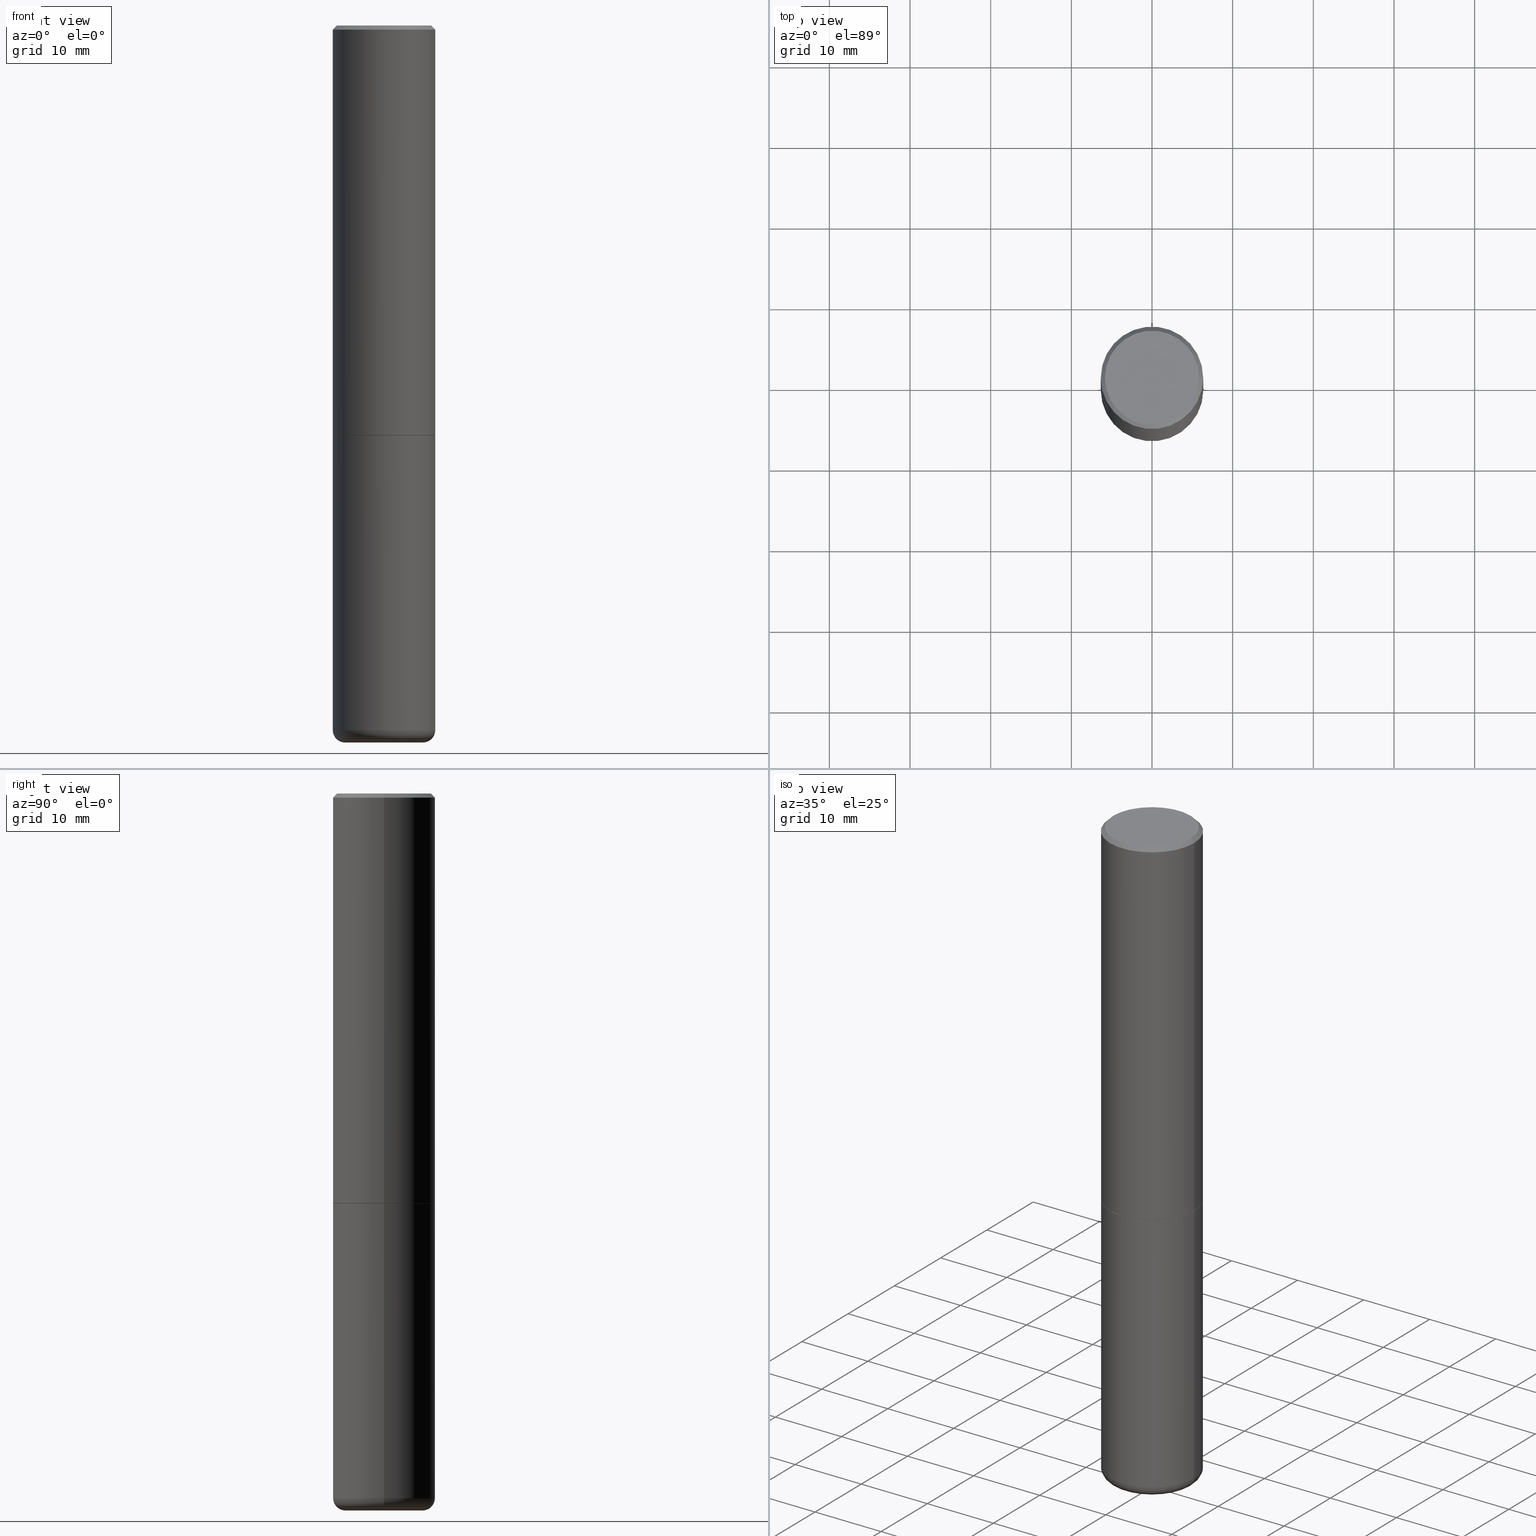
[diagram: canonical four-view strip — front | top / right | iso, engineering-drawing reading convention]
A machine part, canonical four-view strip (front | top / right | iso — engineering-drawing reading convention). The complete STEP part file that produces these views, byte-faithful:
ISO-10303-21;
HEADER;
FILE_DESCRIPTION (( 'STEP AP203' ),
    '1' );
FILE_NAME ('77193.STEP',
    '2024-03-06T16:22:13',
    ( '' ),
    ( '' ),
    'SwSTEP 2.0',
    'SolidWorks 2023',
    '' );
FILE_SCHEMA (( 'CONFIG_CONTROL_DESIGN' ));
ENDSEC;

DATA;
#1 = CC_DESIGN_PERSON_AND_ORGANIZATION_ASSIGNMENT ( #60, #400, ( #214 ) ) ;
#2 = DIRECTION ( 'NONE',  ( -2.445468806185136597E-29, 3.491481338843145583E-15, 1.000000000000000000 ) ) ;
#3 = CIRCLE ( 'NONE', #74, 0.1899999999999999745 ) ;
#4 = CARTESIAN_POINT ( 'NONE',  ( 0.2499999999999999167, -1.784954126219745400E-15, -0.02000000000000005593 ) ) ;
#5 = CARTESIAN_POINT ( 'NONE',  ( 0.000000000000000000, 0.000000000000000000, 0.000000000000000000 ) ) ;
#6 = CC_DESIGN_DATE_AND_TIME_ASSIGNMENT ( #341, #108, ( #319 ) ) ;
#7 = FACE_OUTER_BOUND ( 'NONE', #370, .T. ) ;
#8 = DIRECTION ( 'NONE',  ( 0.7071067811865465735, -7.319954787623252890E-15, -0.7071067811865484609 ) ) ;
#9 = ADVANCED_FACE ( 'NONE', ( #195 ), #241, .F. ) ;
#10 = LOCAL_TIME ( 11, 22, 13.00000000000000000, #403 ) ;
#11 = ORIENTED_EDGE ( 'NONE', *, *, #43, .F. ) ;
#12 = ORIENTED_EDGE ( 'NONE', *, *, #289, .F. ) ;
#13 = PERSON_AND_ORGANIZATION ( #315, #198 ) ;
#14 = ORIENTED_EDGE ( 'NONE', *, *, #46, .F. ) ;
#15 = AXIS2_PLACEMENT_3D ( 'NONE', #221, #55, #25 ) ;
#16 = ORIENTED_EDGE ( 'NONE', *, *, #331, .T. ) ;
#17 = DIRECTION ( 'NONE',  ( -2.445468806185136877E-29, 3.491481338843145188E-15, 1.000000000000000000 ) ) ;
#18 = PRODUCT_DEFINITION_SHAPE ( 'NONE', 'NONE',  #100 ) ;
#19 = EDGE_CURVE ( 'NONE', #334, #270, #373, .T. ) ;
#20 = CALENDAR_DATE ( 2024, 6, 3 ) ;
#21 = CARTESIAN_POINT ( 'NONE',  ( 0.2489999999999999991, -8.721720384430171040E-15, -2.000000000000000000 ) ) ;
#22 = EDGE_LOOP ( 'NONE', ( #365, #366, #47, #172 ) ) ;
#23 = AXIS2_PLACEMENT_3D ( 'NONE', #70, #133, #230 ) ;
#24 = APPLICATION_PROTOCOL_DEFINITION ( 'international standard', 'config_control_design', 1994, #134 ) ;
#25 = DIRECTION ( 'NONE',  ( 1.000000000000000000, -6.982962677686266711E-15, 0.000000000000000000 ) ) ;
#26 = ADVANCED_FACE ( 'NONE', ( #412 ), #123, .T. ) ;
#27 = DIRECTION ( 'NONE',  ( -1.000000000000000000, 6.982962677686265922E-15, -4.876176775795935793E-29 ) ) ;
#28 = PERSON_AND_ORGANIZATION_ROLE ( 'creator' ) ;
#29 = CARTESIAN_POINT ( 'NONE',  ( 4.890937612370287172E-31, -6.982962677686310098E-17, -0.02000000000000005593 ) ) ;
#30 = AXIS2_PLACEMENT_3D ( 'NONE', #382, #59, #217 ) ;
#31 = DIRECTION ( 'NONE',  ( -2.445468806185136877E-29, 3.491481338843145188E-15, 1.000000000000000000 ) ) ;
#32 = DIRECTION ( 'NONE',  ( -2.445468806185136877E-29, 3.491481338843145188E-15, 1.000000000000000000 ) ) ;
#33 = DIRECTION ( 'NONE',  ( 1.000000000000000000, -6.982962677686265133E-15, 4.883557194083112340E-29 ) ) ;
#34 = DIRECTION ( 'NONE',  ( -1.000000000000000000, 6.982962677686265922E-15, -4.876176775795935793E-29 ) ) ;
#35 = VECTOR ( 'NONE', #330, 39.37007874015748143 ) ;
#36 = LINE ( 'NONE', #164, #56 ) ;
#37 = CONICAL_SURFACE ( 'NONE', #258, 0.2499999999999999167, 0.7853981633974469467 ) ;
#38 = DIRECTION ( 'NONE',  ( -2.445468806185136597E-29, 3.491481338843145583E-15, 1.000000000000000000 ) ) ;
#39 = ORIENTED_EDGE ( 'NONE', *, *, #310, .F. ) ;
#40 = LOCAL_TIME ( 11, 22, 13.00000000000000000, #339 ) ;
#41 = DIRECTION ( 'NONE',  ( -1.000000000000000000, 6.982962677686267499E-15, 0.000000000000000000 ) ) ;
#42 = AXIS2_PLACEMENT_3D ( 'NONE', #165, #291, #102 ) ;
#43 = EDGE_CURVE ( 'NONE', #267, #109, #161, .T. ) ;
#44 = ORIENTED_EDGE ( 'NONE', *, *, #142, .T. ) ;
#45 = EDGE_LOOP ( 'NONE', ( #213, #182, #308, #144 ) ) ;
#46 = EDGE_CURVE ( 'NONE', #240, #334, #328, .T. ) ;
#47 = ORIENTED_EDGE ( 'NONE', *, *, #327, .T. ) ;
#48 = CIRCLE ( 'NONE', #251, 0.2299999999999999267 ) ;
#49 = CALENDAR_DATE ( 2024, 6, 3 ) ;
#51 = EDGE_CURVE ( 'NONE', #109, #282, #321, .T. ) ;
#50 = DIRECTION ( 'NONE',  ( -2.445468806185136597E-29, 3.491481338843145583E-15, 1.000000000000000000 ) ) ;
#52 = PERSON_AND_ORGANIZATION ( #315, #198 ) ;
#53 = ORIENTED_EDGE ( 'NONE', *, *, #179, .F. ) ;
#54 = DESIGN_CONTEXT ( 'detailed design', #118, 'design' ) ;
#55 = DIRECTION ( 'NONE',  ( -2.445468806185136597E-29, 3.491481338843145583E-15, 1.000000000000000000 ) ) ;
#56 = VECTOR ( 'NONE', #166, 39.37007874015748143 ) ;
#57 = CARTESIAN_POINT ( 'NONE',  ( 0.000000000000000000, 0.000000000000000000, 0.000000000000000000 ) ) ;
#58 = DIRECTION ( 'NONE',  ( 1.000000000000000000, 0.000000000000000000, 0.000000000000000000 ) ) ;
#59 = DIRECTION ( 'NONE',  ( -2.445468806185136597E-29, 3.491481338843145583E-15, 1.000000000000000000 ) ) ;
#60 = PERSON_AND_ORGANIZATION ( #315, #198 ) ;
#61 = CARTESIAN_POINT ( 'NONE',  ( 4.890937612370287172E-31, -6.982962677686310098E-17, -0.02000000000000005593 ) ) ;
#62 = EDGE_CURVE ( 'NONE', #265, #186, #48, .T. ) ;
#63 = APPROVAL_PERSON_ORGANIZATION ( #183, #295, #367 ) ;
#64 = LINE ( 'NONE', #199, #254 ) ;
#65 = CIRCLE ( 'NONE', #95, 0.2500000000000002776 ) ;
#66 = DIRECTION ( 'NONE',  ( -2.445468806185136597E-29, 3.491481338843145583E-15, 1.000000000000000000 ) ) ;
#67 = CYLINDRICAL_SURFACE ( 'NONE', #311, 0.2500000000000000000 ) ;
#68 = CARTESIAN_POINT ( 'NONE',  ( -0.2500000000000000000, -7.720472402253106025E-15, -2.000000000000000000 ) ) ;
#69 = DIRECTION ( 'NONE',  ( -2.445468806185136597E-29, 3.491481338843145583E-15, 1.000000000000000000 ) ) ;
#70 = CARTESIAN_POINT ( 'NONE',  ( 4.890937612370273194E-29, -6.982962677686291165E-15, -2.000000000000000000 ) ) ;
#71 = DIRECTION ( 'NONE',  ( 2.438088387897960049E-29, -3.491481338843145188E-15, -1.000000000000000000 ) ) ;
#72 = FACE_OUTER_BOUND ( 'NONE', #210, .T. ) ;
#73 = AXIS2_PLACEMENT_3D ( 'NONE', #316, #187, #58 ) ;
#74 = AXIS2_PLACEMENT_3D ( 'NONE', #98, #66, #129 ) ;
#75 = DIRECTION ( 'NONE',  ( 1.000000000000000000, -6.982962677686266711E-15, 0.000000000000000000 ) ) ;
#76 = LINE ( 'NONE', #364, #35 ) ;
#77 = EDGE_LOOP ( 'NONE', ( #53, #405 ) ) ;
#78 = ORIENTED_EDGE ( 'NONE', *, *, #131, .T. ) ;
#79 = AXIS2_PLACEMENT_3D ( 'NONE', #226, #228, #201 ) ;
#80 = EDGE_LOOP ( 'NONE', ( #301, #84, #177, #348 ) ) ;
#81 = EDGE_LOOP ( 'NONE', ( #305, #14 ) ) ;
#82 = ADVANCED_FACE ( 'NONE', ( #125 ), #286, .F. ) ;
#83 = ADVANCED_FACE ( 'NONE', ( #276 ), #350, .T. ) ;
#84 = ORIENTED_EDGE ( 'NONE', *, *, #185, .T. ) ;
#85 = CIRCLE ( 'NONE', #169, 0.05999999999999994227 ) ;
#86 = ORIENTED_EDGE ( 'NONE', *, *, #407, .F. ) ;
#87 = DIRECTION ( 'NONE',  ( -1.000000000000000000, 7.105427357600997914E-15, 0.000000000000000000 ) ) ;
#88 = ADVANCED_FACE ( 'NONE', ( #314 ), #369, .T. ) ;
#89 = DIRECTION ( 'NONE',  ( 0.7071067811866199593, -2.468850131083015945E-15, 0.7071067811864750752 ) ) ;
#90 = DIRECTION ( 'NONE',  ( -2.445468806185136597E-29, 3.491481338843145583E-15, 1.000000000000000000 ) ) ;
#91 = CARTESIAN_POINT ( 'NONE',  ( -0.2499999999999999167, 1.675911042644703182E-15, -0.02000000000000005593 ) ) ;
#92 = CARTESIAN_POINT ( 'NONE',  ( 0.2499999999999999722, -1.375643647504198770E-14, -3.439999999999999947 ) ) ;
#93 = DIRECTION ( 'NONE',  ( -2.445468806185136597E-29, 3.491481338843145583E-15, 1.000000000000000000 ) ) ;
#94 = DIRECTION ( 'NONE',  ( 1.000000000000000000, -6.982962677686273021E-15, 0.000000000000000000 ) ) ;
#95 = AXIS2_PLACEMENT_3D ( 'NONE', #325, #358, #75 ) ;
#96 = DIRECTION ( 'NONE',  ( 1.000000000000000000, -6.982962677686274599E-15, 0.000000000000000000 ) ) ;
#97 = DIRECTION ( 'NONE',  ( 1.000000000000000000, -6.982962677686266711E-15, 0.000000000000000000 ) ) ;
#98 = CARTESIAN_POINT ( 'NONE',  ( 8.559140821647976968E-29, -1.222018468595100934E-14, -3.500000000000000000 ) ) ;
#99 = CARTESIAN_POINT ( 'NONE',  ( 2.087702828670439639E-46, -2.980686340760894400E-32, -8.537024980200822558E-18 ) ) ;
#100 = PRODUCT_DEFINITION ( 'UNKNOWN', '', #214, #54 ) ;
#101 = DIRECTION ( 'NONE',  ( 1.000000000000000000, -6.982962677686266711E-15, 0.000000000000000000 ) ) ;
#102 = DIRECTION ( 'NONE',  ( 1.000000000000000000, -6.982962677686270655E-15, 0.000000000000000000 ) ) ;
#103 = AXIS2_PLACEMENT_3D ( 'NONE', #393, #361, #359 ) ;
#104 = ADVANCED_BREP_SHAPE_REPRESENTATION ( '77193', ( #285, #146, #73 ), #298 ) ;
#105 = ORIENTED_EDGE ( 'NONE', *, *, #185, .F. ) ;
#106 = CC_DESIGN_PERSON_AND_ORGANIZATION_ASSIGNMENT ( #193, #28, ( #100 ) ) ;
#107 = ORIENTED_EDGE ( 'NONE', *, *, #179, .T. ) ;
#108 = DATE_TIME_ROLE ( 'classification_date' ) ;
#109 = VERTEX_POINT ( 'NONE', #279 ) ;
#110 = TOROIDAL_SURFACE ( 'NONE', #79, 0.1899999999999999745, 0.05999999999999995615 ) ;
#111 = ORIENTED_EDGE ( 'NONE', *, *, #304, .F. ) ;
#112 = CC_DESIGN_PERSON_AND_ORGANIZATION_ASSIGNMENT ( #156, #245, ( #343 ) ) ;
#113 = CALENDAR_DATE ( 2024, 6, 3 ) ;
#114 = ORIENTED_EDGE ( 'NONE', *, *, #51, .T. ) ;
#115 = ADVANCED_FACE ( 'NONE', ( #184 ), #381, .T. ) ;
#116 = AXIS2_PLACEMENT_3D ( 'NONE', #326, #322, #294 ) ;
#117 = LINE ( 'NONE', #163, #273 ) ;
#118 = APPLICATION_CONTEXT ( 'configuration controlled 3d designs of mechanical parts and assemblies' ) ;
#119 = VERTEX_POINT ( 'NONE', #4 ) ;
#120 = CARTESIAN_POINT ( 'NONE',  ( 4.890937612370287172E-31, -6.982962677686310098E-17, -0.02000000000000005593 ) ) ;
#121 = PERSON_AND_ORGANIZATION ( #315, #198 ) ;
#122 = EDGE_CURVE ( 'NONE', #212, #282, #85, .T. ) ;
#123 = CYLINDRICAL_SURFACE ( 'NONE', #143, 0.2500000000000001110 ) ;
#124 =( CONVERSION_BASED_UNIT ( 'INCH', #374 ) LENGTH_UNIT ( ) NAMED_UNIT ( #275 ) );
#125 = FACE_OUTER_BOUND ( 'NONE', #81, .T. ) ;
#126 = APPROVAL_DATE_TIME ( #151, #371 ) ;
#127 = DIRECTION ( 'NONE',  ( 1.000000000000000000, -6.982962677686267499E-15, 4.876225828469310563E-29 ) ) ;
#128 = COORDINATED_UNIVERSAL_TIME_OFFSET ( 5, 0, .BEHIND. ) ;
#129 = DIRECTION ( 'NONE',  ( 1.000000000000000000, -6.982962677686273021E-15, 0.000000000000000000 ) ) ;
#130 = FACE_OUTER_BOUND ( 'NONE', #379, .T. ) ;
#131 = EDGE_CURVE ( 'NONE', #141, #119, #189, .T. ) ;
#132 = DIRECTION ( 'NONE',  ( 1.000000000000000000, -6.982962677686267499E-15, 0.000000000000000000 ) ) ;
#133 = DIRECTION ( 'NONE',  ( -2.445468806185136597E-29, 3.491481338843145583E-15, 1.000000000000000000 ) ) ;
#134 = APPLICATION_CONTEXT ( 'configuration controlled 3d designs of mechanical parts and assemblies' ) ;
#135 = VECTOR ( 'NONE', #89, 39.37007874015748143 ) ;
#136 = CARTESIAN_POINT ( 'NONE',  ( 8.559140821647976968E-29, -1.222018468595100934E-14, -3.500000000000000000 ) ) ;
#137 = ADVANCED_FACE ( 'NONE', ( #256 ), #232, .T. ) ;
#138 = CARTESIAN_POINT ( 'NONE',  ( 8.559140821647976968E-29, -1.222018468595100934E-14, -3.500000000000000000 ) ) ;
#139 = CARTESIAN_POINT ( 'NONE',  ( 4.890937612370273194E-29, -6.982962677686291165E-15, -2.000000000000000000 ) ) ;
#140 = CARTESIAN_POINT ( 'NONE',  ( -0.1899999999999999745, -1.055224622711349575E-14, -3.500000000000000000 ) ) ;
#141 = VERTEX_POINT ( 'NONE', #91 ) ;
#142 = EDGE_CURVE ( 'NONE', #265, #141, #392, .T. ) ;
#143 = AXIS2_PLACEMENT_3D ( 'NONE', #309, #90, #157 ) ;
#144 = ORIENTED_EDGE ( 'NONE', *, *, #131, .F. ) ;
#145 = EDGE_LOOP ( 'NONE', ( #11, #16, #395, #188 ) ) ;
#146 = MANIFOLD_SOLID_BREP ( 'Body-Move/Copy2[2]', #281 ) ;
#147 = AXIS2_PLACEMENT_3D ( 'NONE', #222, #50, #155 ) ;
#148 = ORIENTED_EDGE ( 'NONE', *, *, #224, .T. ) ;
#149 = CARTESIAN_POINT ( 'NONE',  ( -0.1899999999999999745, -1.066066460767623105E-14, -3.439999999999999947 ) ) ;
#150 = CARTESIAN_POINT ( 'NONE',  ( 4.890937612370273194E-29, -6.982962677686291165E-15, -2.000000000000000000 ) ) ;
#151 = DATE_AND_TIME ( #49, #40 ) ;
#152 = APPROVAL ( #351, 'UNSPECIFIED' ) ;
#153 = ORIENTED_EDGE ( 'NONE', *, *, #160, .T. ) ;
#154 = CIRCLE ( 'NONE', #231, 0.2499999999999999167 ) ;
#155 = DIRECTION ( 'NONE',  ( 1.000000000000000000, -6.982962677686270655E-15, 0.000000000000000000 ) ) ;
#156 = PERSON_AND_ORGANIZATION ( #315, #198 ) ;
#157 = DIRECTION ( 'NONE',  ( 1.000000000000000000, -6.982962677686266711E-15, 4.876176775795935793E-29 ) ) ;
#158 = APPROVAL_ROLE ( '' ) ;
#159 = LOCAL_TIME ( 11, 22, 13.00000000000000000, #249 ) ;
#160 = EDGE_CURVE ( 'NONE', #282, #247, #260, .T. ) ;
#161 = CIRCLE ( 'NONE', #206, 0.05999999999999994227 ) ;
#162 = DIRECTION ( 'NONE',  ( 2.445468806185136597E-29, -3.491481338843145583E-15, -1.000000000000000000 ) ) ;
#163 = CARTESIAN_POINT ( 'NONE',  ( -0.2500000000000001110, 1.776356839400251254E-15, -1.229733772563727006E-29 ) ) ;
#164 = CARTESIAN_POINT ( 'NONE',  ( -0.2489999999999999991, -5.213711265643641709E-15, -2.000000000000000000 ) ) ;
#165 = CARTESIAN_POINT ( 'NONE',  ( 8.412412693276869938E-29, -1.201069580562042103E-14, -3.439999999999999947 ) ) ;
#166 = DIRECTION ( 'NONE',  ( -0.7071067811866199593, 7.493145998870616062E-15, 0.7071067811864750752 ) ) ;
#167 = CARTESIAN_POINT ( 'NONE',  ( 4.890937612370273194E-29, -6.982962677686291165E-15, -2.000000000000000000 ) ) ;
#168 = PERSON_AND_ORGANIZATION ( #315, #198 ) ;
#169 = AXIS2_PLACEMENT_3D ( 'NONE', #197, #292, #96 ) ;
#170 = DIRECTION ( 'NONE',  ( -2.445468806185136597E-29, 3.491481338843145583E-15, 1.000000000000000000 ) ) ;
#171 = EDGE_CURVE ( 'NONE', #270, #332, #65, .T. ) ;
#172 = ORIENTED_EDGE ( 'NONE', *, *, #142, .F. ) ;
#173 = CC_DESIGN_APPROVAL ( #152, ( #214 ) ) ;
#174 = CLOSED_SHELL ( 'NONE', ( #248, #194, #263, #83, #208, #137 ) ) ;
#175 = ORIENTED_EDGE ( 'NONE', *, *, #46, .T. ) ;
#176 = APPROVAL_DATE_TIME ( #333, #295 ) ;
#177 = ORIENTED_EDGE ( 'NONE', *, *, #171, .F. ) ;
#178 = AXIS2_PLACEMENT_3D ( 'NONE', #99, #385, #227 ) ;
#179 = EDGE_CURVE ( 'NONE', #212, #267, #3, .T. ) ;
#180 = EDGE_LOOP ( 'NONE', ( #12, #114, #153, #342 ) ) ;
#181 = AXIS2_PLACEMENT_3D ( 'NONE', #202, #170, #296 ) ;
#182 = ORIENTED_EDGE ( 'NONE', *, *, #336, .T. ) ;
#183 = PERSON_AND_ORGANIZATION ( #315, #198 ) ;
#184 = FACE_OUTER_BOUND ( 'NONE', #22, .T. ) ;
#185 = EDGE_CURVE ( 'NONE', #240, #332, #36, .T. ) ;
#186 = VERTEX_POINT ( 'NONE', #261 ) ;
#187 = DIRECTION ( 'NONE',  ( 0.000000000000000000, 0.000000000000000000, 1.000000000000000000 ) ) ;
#188 = ORIENTED_EDGE ( 'NONE', *, *, #51, .F. ) ;
#189 = CIRCLE ( 'NONE', #402, 0.2499999999999999167 ) ;
#190 = CC_DESIGN_PERSON_AND_ORGANIZATION_ASSIGNMENT ( #168, #329, ( #214 ) ) ;
#191 = DIRECTION ( 'NONE',  ( 1.000000000000000000, -6.982962677686266711E-15, 4.876176775795935793E-29 ) ) ;
#192 = CIRCLE ( 'NONE', #116, 0.2500000000000002776 ) ;
#193 = PERSON_AND_ORGANIZATION ( #315, #198 ) ;
#194 = ADVANCED_FACE ( 'NONE', ( #362 ), #110, .T. ) ;
#195 = FACE_OUTER_BOUND ( 'NONE', #237, .T. ) ;
#196 = CARTESIAN_POINT ( 'NONE',  ( 3.364826205900701146E-29, -9.168441072617700951E-15, -2.000000000000000000 ) ) ;
#197 = CARTESIAN_POINT ( 'NONE',  ( 0.1899999999999999745, -1.333745871438081265E-14, -3.439999999999999947 ) ) ;
#198 = ORGANIZATION ( 'UNSPECIFIED', 'UNSPECIFIED', '' ) ;
#199 = CARTESIAN_POINT ( 'NONE',  ( 0.2499999999999999167, -1.784954126219745400E-15, -0.02000000000000005593 ) ) ;
#200 = VECTOR ( 'NONE', #287, 39.37007874015748143 ) ;
#201 = DIRECTION ( 'NONE',  ( 1.000000000000000000, -6.982962677686265133E-15, 4.883557194083112340E-29 ) ) ;
#202 = CARTESIAN_POINT ( 'NONE',  ( 0.000000000000000000, 0.000000000000000000, 0.000000000000000000 ) ) ;
#203 = CARTESIAN_POINT ( 'NONE',  ( 0.2500000000000000000, -1.745740669421566678E-15, 1.219044193948983948E-29 ) ) ;
#204 = CARTESIAN_POINT ( 'NONE',  ( -0.2299999999999999267, 1.640996229256272125E-15, -8.537024980212177841E-18 ) ) ;
#205 = DIRECTION ( 'NONE',  ( 2.438088387897960049E-29, -3.491481338843145188E-15, -1.000000000000000000 ) ) ;
#206 = AXIS2_PLACEMENT_3D ( 'NONE', #149, #415, #87 ) ;
#207 = CARTESIAN_POINT ( 'NONE',  ( -0.2489999999999999991, -5.208412811295418518E-15, -2.000000000000000000 ) ) ;
#208 = ADVANCED_FACE ( 'NONE', ( #320 ), #288, .T. ) ;
#209 = COORDINATED_UNIVERSAL_TIME_OFFSET ( 5, 0, .BEHIND. ) ;
#210 = EDGE_LOOP ( 'NONE', ( #312, #148, #380, #86 ) ) ;
#211 = EDGE_CURVE ( 'NONE', #244, #247, #306, .T. ) ;
#212 = VERTEX_POINT ( 'NONE', #384 ) ;
#213 = ORIENTED_EDGE ( 'NONE', *, *, #224, .F. ) ;
#214 = PRODUCT_DEFINITION_FORMATION_WITH_SPECIFIED_SOURCE ( 'ANY', '', #343, .NOT_KNOWN. ) ;
#215 = SECURITY_CLASSIFICATION_LEVEL ( 'unclassified' ) ;
#216 = ADVANCED_FACE ( 'NONE', ( #354 ), #37, .T. ) ;
#217 = DIRECTION ( 'NONE',  ( 1.000000000000000000, -6.982962677686266711E-15, 0.000000000000000000 ) ) ;
#218 = MECHANICAL_CONTEXT ( 'NONE', #134, 'mechanical' ) ;
#219 = AXIS2_PLACEMENT_3D ( 'NONE', #138, #257, #94 ) ;
#220 = EDGE_LOOP ( 'NONE', ( #105, #175, #250, #236 ) ) ;
#221 = CARTESIAN_POINT ( 'NONE',  ( 4.890937612370273194E-29, -6.982962677686291165E-15, -2.000000000000000000 ) ) ;
#222 = CARTESIAN_POINT ( 'NONE',  ( 8.412412693276869938E-29, -1.201069580562042103E-14, -3.439999999999999947 ) ) ;
#223 = VECTOR ( 'NONE', #31, 39.37007874015748143 ) ;
#224 = EDGE_CURVE ( 'NONE', #332, #141, #117, .T. ) ;
#225 = DIRECTION ( 'NONE',  ( 1.000000000000000000, -6.982962677686265922E-15, 4.876176775795935793E-29 ) ) ;
#226 = CARTESIAN_POINT ( 'NONE',  ( 8.412412693276869938E-29, -1.201069580562042103E-14, -3.439999999999999947 ) ) ;
#227 = DIRECTION ( 'NONE',  ( 1.000000000000000000, -6.982962677686267499E-15, 4.876225828469310563E-29 ) ) ;
#228 = DIRECTION ( 'NONE',  ( -2.445468806185136597E-29, 3.491481338843145583E-15, 1.000000000000000000 ) ) ;
#229 = CIRCLE ( 'NONE', #103, 0.2500000000000000000 ) ;
#230 = DIRECTION ( 'NONE',  ( 1.000000000000000000, -6.982962677686266711E-15, 0.000000000000000000 ) ) ;
#231 = AXIS2_PLACEMENT_3D ( 'NONE', #29, #417, #233 ) ;
#232 = PLANE ( 'NONE',  #375 ) ;
#233 = DIRECTION ( 'NONE',  ( 1.000000000000000000, -6.982962677686267499E-15, 0.000000000000000000 ) ) ;
#234 = DIRECTION ( 'NONE',  ( -2.445468806185136597E-29, 3.491481338843145583E-15, 1.000000000000000000 ) ) ;
#235 = VECTOR ( 'NONE', #32, 39.37007874015748143 ) ;
#236 = ORIENTED_EDGE ( 'NONE', *, *, #336, .F. ) ;
#237 = EDGE_LOOP ( 'NONE', ( #368, #274 ) ) ;
#238 = APPROVAL_STATUS ( 'not_yet_approved' ) ;
#239 = AXIS2_PLACEMENT_3D ( 'NONE', #377, #346, #27 ) ;
#240 = VERTEX_POINT ( 'NONE', #207 ) ;
#241 = PLANE ( 'NONE',  #239 ) ;
#242 =( NAMED_UNIT ( * ) SI_UNIT ( $, .STERADIAN. ) SOLID_ANGLE_UNIT ( ) );
#243 = AXIS2_PLACEMENT_3D ( 'NONE', #150, #409, #225 ) ;
#244 = VERTEX_POINT ( 'NONE', #68 ) ;
#245 = PERSON_AND_ORGANIZATION_ROLE ( 'design_owner' ) ;
#246 = ORIENTED_EDGE ( 'NONE', *, *, #43, .T. ) ;
#247 = VERTEX_POINT ( 'NONE', #253 ) ;
#248 = ADVANCED_FACE ( 'NONE', ( #130 ), #67, .T. ) ;
#249 = COORDINATED_UNIVERSAL_TIME_OFFSET ( 5, 0, .BEHIND. ) ;
#250 = ORIENTED_EDGE ( 'NONE', *, *, #19, .T. ) ;
#251 = AXIS2_PLACEMENT_3D ( 'NONE', #284, #413, #127 ) ;
#252 = CARTESIAN_POINT ( 'NONE',  ( 8.412412693276869938E-29, -1.201069580562042103E-14, -3.439999999999999947 ) ) ;
#253 = CARTESIAN_POINT ( 'NONE',  ( 0.2500000000000000000, -8.728703347107857054E-15, -2.000000000000000000 ) ) ;
#254 = VECTOR ( 'NONE', #8, 39.37007874015748143 ) ;
#255 = ADVANCED_FACE ( 'NONE', ( #72 ), #259, .T. ) ;
#256 = FACE_OUTER_BOUND ( 'NONE', #77, .T. ) ;
#257 = DIRECTION ( 'NONE',  ( -2.445468806185136597E-29, 3.491481338843145583E-15, 1.000000000000000000 ) ) ;
#258 = AXIS2_PLACEMENT_3D ( 'NONE', #61, #162, #41 ) ;
#259 = CYLINDRICAL_SURFACE ( 'NONE', #181, 0.2500000000000001110 ) ;
#260 = LINE ( 'NONE', #203, #223 ) ;
#261 = CARTESIAN_POINT ( 'NONE',  ( 0.2299999999999999267, -1.681434332853598617E-15, -8.537024980189327067E-18 ) ) ;
#262 = LINE ( 'NONE', #418, #235 ) ;
#263 = ADVANCED_FACE ( 'NONE', ( #7 ), #389, .F. ) ;
#264 = LOCAL_TIME ( 11, 22, 13.00000000000000000, #128 ) ;
#265 = VERTEX_POINT ( 'NONE', #204 ) ;
#266 = AXIS2_PLACEMENT_3D ( 'NONE', #120, #323, #390 ) ;
#267 = VERTEX_POINT ( 'NONE', #140 ) ;
#268 = CIRCLE ( 'NONE', #178, 0.2299999999999999267 ) ;
#269 = PRODUCT_RELATED_PRODUCT_CATEGORY ( 'detail', '', ( #343 ) ) ;
#270 = VERTEX_POINT ( 'NONE', #318 ) ;
#271 = APPROVAL_PERSON_ORGANIZATION ( #52, #371, #378 ) ;
#272 = EDGE_LOOP ( 'NONE', ( #107, #246, #39, #406 ) ) ;
#273 = VECTOR ( 'NONE', #17, 39.37007874015748143 ) ;
#274 = ORIENTED_EDGE ( 'NONE', *, *, #352, .T. ) ;
#275 = DIMENSIONAL_EXPONENTS ( 1.000000000000000000, 0.000000000000000000, 0.000000000000000000, 0.000000000000000000, 0.000000000000000000, 0.000000000000000000, 0.000000000000000000 ) ;
#276 = FACE_OUTER_BOUND ( 'NONE', #180, .T. ) ;
#277 = EDGE_CURVE ( 'NONE', #334, #240, #363, .T. ) ;
#278 = DATE_AND_TIME ( #20, #264 ) ;
#279 = CARTESIAN_POINT ( 'NONE',  ( -0.2499999999999999722, -1.023433896622016898E-14, -3.439999999999999947 ) ) ;
#280 = DATE_AND_TIME ( #307, #159 ) ;
#281 = CLOSED_SHELL ( 'NONE', ( #317, #255, #115, #216, #26, #88, #82, #9 ) ) ;
#282 = VERTEX_POINT ( 'NONE', #92 ) ;
#283 = SHAPE_DEFINITION_REPRESENTATION ( #18, #104 ) ;
#284 = CARTESIAN_POINT ( 'NONE',  ( 2.087702828670439639E-46, -2.980686340760894400E-32, -8.537024980200822558E-18 ) ) ;
#285 = MANIFOLD_SOLID_BREP ( 'Body-Move/Copy2[1]', #174 ) ;
#286 = PLANE ( 'NONE',  #243 ) ;
#287 = DIRECTION ( 'NONE',  ( -0.7071067811865465735, 2.468850131082246805E-15, -0.7071067811865484609 ) ) ;
#288 = TOROIDAL_SURFACE ( 'NONE', #349, 0.1899999999999999745, 0.05999999999999995615 ) ;
#289 = EDGE_CURVE ( 'NONE', #109, #244, #262, .T. ) ;
#290 = CARTESIAN_POINT ( 'NONE',  ( 4.890937612370287172E-31, -6.982962677686310098E-17, -0.02000000000000005593 ) ) ;
#291 = DIRECTION ( 'NONE',  ( -2.445468806185136597E-29, 3.491481338843145583E-15, 1.000000000000000000 ) ) ;
#292 = DIRECTION ( 'NONE',  ( -6.982962677686266711E-15, -1.000000000000000000, 3.491481338843145583E-15 ) ) ;
#293 = CARTESIAN_POINT ( 'NONE',  ( 0.2489999999999999991, -8.721720384430171040E-15, -2.000000000000000000 ) ) ;
#294 = DIRECTION ( 'NONE',  ( 1.000000000000000000, -6.982962677686266711E-15, 0.000000000000000000 ) ) ;
#295 = APPROVAL ( #238, 'UNSPECIFIED' ) ;
#296 = DIRECTION ( 'NONE',  ( 1.000000000000000000, -6.982962677686266711E-15, 4.876176775795935793E-29 ) ) ;
#297 = LOCAL_TIME ( 11, 22, 13.00000000000000000, #209 ) ;
#298 =( GEOMETRIC_REPRESENTATION_CONTEXT ( 3 ) GLOBAL_UNCERTAINTY_ASSIGNED_CONTEXT ( ( #303 ) ) GLOBAL_UNIT_ASSIGNED_CONTEXT ( ( #124, #344, #242 ) ) REPRESENTATION_CONTEXT ( 'NONE', 'WORKASPACE' ) );
#299 = ORIENTED_EDGE ( 'NONE', *, *, #289, .T. ) ;
#300 = AXIS2_PLACEMENT_3D ( 'NONE', #139, #2, #101 ) ;
#301 = ORIENTED_EDGE ( 'NONE', *, *, #277, .T. ) ;
#302 = ORIENTED_EDGE ( 'NONE', *, *, #211, .T. ) ;
#303 = UNCERTAINTY_MEASURE_WITH_UNIT (LENGTH_MEASURE( 1.000000000000000082E-05 ), #124, 'distance_accuracy_value', 'NONE');
#304 = EDGE_CURVE ( 'NONE', #247, #244, #229, .T. ) ;
#305 = ORIENTED_EDGE ( 'NONE', *, *, #277, .F. ) ;
#306 = CIRCLE ( 'NONE', #300, 0.2500000000000000000 ) ;
#307 = CALENDAR_DATE ( 2024, 6, 3 ) ;
#308 = ORIENTED_EDGE ( 'NONE', *, *, #407, .T. ) ;
#309 = CARTESIAN_POINT ( 'NONE',  ( 0.000000000000000000, 0.000000000000000000, 0.000000000000000000 ) ) ;
#310 = EDGE_CURVE ( 'NONE', #282, #109, #340, .T. ) ;
#311 = AXIS2_PLACEMENT_3D ( 'NONE', #5, #38, #324 ) ;
#312 = ORIENTED_EDGE ( 'NONE', *, *, #171, .T. ) ;
#313 =( LENGTH_UNIT ( ) NAMED_UNIT ( * ) SI_UNIT ( $, .METRE. ) );
#314 = FACE_OUTER_BOUND ( 'NONE', #220, .T. ) ;
#315 = PERSON ( 'UNSPECIFIED', 'UNSPECIFIED', 'UNSPECIFIED', ('UNSPECIFIED'), ('UNSPECIFIED'), ('UNSPECIFIED') ) ;
#316 = CARTESIAN_POINT ( 'NONE',  ( 0.000000000000000000, 0.000000000000000000, 0.000000000000000000 ) ) ;
#317 = ADVANCED_FACE ( 'NONE', ( #355 ), #388, .T. ) ;
#318 = CARTESIAN_POINT ( 'NONE',  ( 0.2500000000000002776, -8.725211865769015625E-15, -1.998999999999999888 ) ) ;
#319 = SECURITY_CLASSIFICATION ( '', '', #215 ) ;
#320 = FACE_OUTER_BOUND ( 'NONE', #145, .T. ) ;
#321 = CIRCLE ( 'NONE', #147, 0.2500000000000000000 ) ;
#322 = DIRECTION ( 'NONE',  ( -2.445468806185136597E-29, 3.491481338843145583E-15, 1.000000000000000000 ) ) ;
#323 = DIRECTION ( 'NONE',  ( 2.445468806185136597E-29, -3.491481338843145583E-15, -1.000000000000000000 ) ) ;
#324 = DIRECTION ( 'NONE',  ( 1.000000000000000000, -6.982962677686266711E-15, 4.876176775795935793E-29 ) ) ;
#325 = CARTESIAN_POINT ( 'NONE',  ( 4.888492143564087591E-29, -6.979471196347447369E-15, -1.998999999999999888 ) ) ;
#326 = CARTESIAN_POINT ( 'NONE',  ( 4.888492143564087591E-29, -6.979471196347447369E-15, -1.998999999999999888 ) ) ;
#327 = EDGE_CURVE ( 'NONE', #119, #141, #154, .T. ) ;
#328 = CIRCLE ( 'NONE', #15, 0.2489999999999999991 ) ;
#329 = PERSON_AND_ORGANIZATION_ROLE ( 'creator' ) ;
#330 = DIRECTION ( 'NONE',  ( -2.445468806185136877E-29, 3.491481338843145188E-15, 1.000000000000000000 ) ) ;
#331 = EDGE_CURVE ( 'NONE', #267, #212, #404, .T. ) ;
#332 = VERTEX_POINT ( 'NONE', #391 ) ;
#333 = DATE_AND_TIME ( #113, #297 ) ;
#334 = VERTEX_POINT ( 'NONE', #293 ) ;
#335 = ORIENTED_EDGE ( 'NONE', *, *, #160, .F. ) ;
#336 = EDGE_CURVE ( 'NONE', #332, #270, #192, .T. ) ;
#337 = ORIENTED_EDGE ( 'NONE', *, *, #62, .F. ) ;
#338 = CC_DESIGN_APPROVAL ( #371, ( #100 ) ) ;
#339 = COORDINATED_UNIVERSAL_TIME_OFFSET ( 5, 0, .BEHIND. ) ;
#340 = CIRCLE ( 'NONE', #42, 0.2500000000000000000 ) ;
#341 = DATE_AND_TIME ( #345, #10 ) ;
#342 = ORIENTED_EDGE ( 'NONE', *, *, #211, .F. ) ;
#343 = PRODUCT ( '77193', '77193', '', ( #218 ) ) ;
#344 =( NAMED_UNIT ( * ) PLANE_ANGLE_UNIT ( ) SI_UNIT ( $, .RADIAN. ) );
#345 = CALENDAR_DATE ( 2024, 6, 3 ) ;
#346 = DIRECTION ( 'NONE',  ( 2.438088387897960049E-29, -3.491481338843145188E-15, -1.000000000000000000 ) ) ;
#347 = CC_DESIGN_PERSON_AND_ORGANIZATION_ASSIGNMENT ( #13, #398, ( #319 ) ) ;
#348 = ORIENTED_EDGE ( 'NONE', *, *, #19, .F. ) ;
#349 = AXIS2_PLACEMENT_3D ( 'NONE', #252, #93, #33 ) ;
#350 = CYLINDRICAL_SURFACE ( 'NONE', #416, 0.2500000000000000000 ) ;
#351 = APPROVAL_STATUS ( 'not_yet_approved' ) ;
#352 = EDGE_CURVE ( 'NONE', #186, #265, #268, .T. ) ;
#353 = DIRECTION ( 'NONE',  ( -2.445468806185136597E-29, 3.491481338843145583E-15, 1.000000000000000000 ) ) ;
#354 = FACE_OUTER_BOUND ( 'NONE', #372, .T. ) ;
#355 = FACE_OUTER_BOUND ( 'NONE', #80, .T. ) ;
#356 = CC_DESIGN_APPROVAL ( #295, ( #319 ) ) ;
#357 = AXIS2_PLACEMENT_3D ( 'NONE', #167, #234, #97 ) ;
#358 = DIRECTION ( 'NONE',  ( -2.445468806185136597E-29, 3.491481338843145583E-15, 1.000000000000000000 ) ) ;
#359 = DIRECTION ( 'NONE',  ( 1.000000000000000000, -6.982962677686266711E-15, 0.000000000000000000 ) ) ;
#360 = DIRECTION ( 'NONE',  ( -1.000000000000000000, 6.982962677686265922E-15, -4.876176775795935793E-29 ) ) ;
#361 = DIRECTION ( 'NONE',  ( -2.445468806185136597E-29, 3.491481338843145583E-15, 1.000000000000000000 ) ) ;
#362 = FACE_OUTER_BOUND ( 'NONE', #272, .T. ) ;
#363 = CIRCLE ( 'NONE', #357, 0.2489999999999999991 ) ;
#364 = CARTESIAN_POINT ( 'NONE',  ( 0.2500000000000001110, -1.745740669421567467E-15, 1.219044193948984509E-29 ) ) ;
#365 = ORIENTED_EDGE ( 'NONE', *, *, #352, .F. ) ;
#366 = ORIENTED_EDGE ( 'NONE', *, *, #396, .T. ) ;
#367 = APPROVAL_ROLE ( '' ) ;
#368 = ORIENTED_EDGE ( 'NONE', *, *, #62, .T. ) ;
#369 = CONICAL_SURFACE ( 'NONE', #30, 0.2489999999999999991, 0.7853981633975507526 ) ;
#370 = EDGE_LOOP ( 'NONE', ( #399, #302 ) ) ;
#371 = APPROVAL ( #414, 'UNSPECIFIED' ) ;
#372 = EDGE_LOOP ( 'NONE', ( #397, #337, #44, #78 ) ) ;
#373 = LINE ( 'NONE', #21, #135 ) ;
#374 = LENGTH_MEASURE_WITH_UNIT ( LENGTH_MEASURE( 0.02539999999999999897 ), #313 );
#375 = AXIS2_PLACEMENT_3D ( 'NONE', #136, #71, #360 ) ;
#376 = CC_DESIGN_DATE_AND_TIME_ASSIGNMENT ( #280, #411, ( #100 ) ) ;
#377 = CARTESIAN_POINT ( 'NONE',  ( 1.606081415867840870E-15, 0.2299999999999999267, -8.073092204240237214E-16 ) ) ;
#378 = APPROVAL_ROLE ( '' ) ;
#379 = EDGE_LOOP ( 'NONE', ( #401, #299, #111, #335 ) ) ;
#380 = ORIENTED_EDGE ( 'NONE', *, *, #327, .F. ) ;
#381 = CONICAL_SURFACE ( 'NONE', #266, 0.2499999999999999167, 0.7853981633974469467 ) ;
#382 = CARTESIAN_POINT ( 'NONE',  ( 4.890937612370273194E-29, -6.982962677686291165E-15, -2.000000000000000000 ) ) ;
#383 = APPLICATION_PROTOCOL_DEFINITION ( 'international standard', 'config_control_design', 1994, #118 ) ;
#384 = CARTESIAN_POINT ( 'NONE',  ( 0.1899999999999999745, -1.354694759471140096E-14, -3.500000000000000000 ) ) ;
#385 = DIRECTION ( 'NONE',  ( -2.445468806185136597E-29, 3.491481338843145583E-15, 1.000000000000000000 ) ) ;
#386 = CARTESIAN_POINT ( 'NONE',  ( -0.2499999999999999167, 1.675911042644703182E-15, -0.02000000000000005593 ) ) ;
#387 = APPROVAL_DATE_TIME ( #278, #152 ) ;
#388 = CONICAL_SURFACE ( 'NONE', #23, 0.2489999999999999991, 0.7853981633975507526 ) ;
#389 = PLANE ( 'NONE',  #410 ) ;
#390 = DIRECTION ( 'NONE',  ( -1.000000000000000000, 6.982962677686267499E-15, 0.000000000000000000 ) ) ;
#391 = CARTESIAN_POINT ( 'NONE',  ( -0.2500000000000002776, -1.748293572161900530E-15, -1.998999999999999888 ) ) ;
#392 = LINE ( 'NONE', #386, #200 ) ;
#393 = CARTESIAN_POINT ( 'NONE',  ( 4.890937612370273194E-29, -6.982962677686291165E-15, -2.000000000000000000 ) ) ;
#394 = APPROVAL_PERSON_ORGANIZATION ( #121, #152, #158 ) ;
#395 = ORIENTED_EDGE ( 'NONE', *, *, #122, .T. ) ;
#396 = EDGE_CURVE ( 'NONE', #186, #119, #64, .T. ) ;
#397 = ORIENTED_EDGE ( 'NONE', *, *, #396, .F. ) ;
#398 = PERSON_AND_ORGANIZATION_ROLE ( 'classification_officer' ) ;
#399 = ORIENTED_EDGE ( 'NONE', *, *, #304, .T. ) ;
#400 = PERSON_AND_ORGANIZATION_ROLE ( 'design_supplier' ) ;
#401 = ORIENTED_EDGE ( 'NONE', *, *, #310, .T. ) ;
#402 = AXIS2_PLACEMENT_3D ( 'NONE', #290, #69, #132 ) ;
#403 = COORDINATED_UNIVERSAL_TIME_OFFSET ( 5, 0, .BEHIND. ) ;
#404 = CIRCLE ( 'NONE', #219, 0.1899999999999999745 ) ;
#405 = ORIENTED_EDGE ( 'NONE', *, *, #331, .F. ) ;
#406 = ORIENTED_EDGE ( 'NONE', *, *, #122, .F. ) ;
#407 = EDGE_CURVE ( 'NONE', #270, #119, #76, .T. ) ;
#408 = CC_DESIGN_SECURITY_CLASSIFICATION ( #319, ( #214 ) ) ;
#409 = DIRECTION ( 'NONE',  ( -2.438088387897960049E-29, 3.491481338843145188E-15, 1.000000000000000000 ) ) ;
#410 = AXIS2_PLACEMENT_3D ( 'NONE', #196, #205, #34 ) ;
#411 = DATE_TIME_ROLE ( 'creation_date' ) ;
#412 = FACE_OUTER_BOUND ( 'NONE', #45, .T. ) ;
#413 = DIRECTION ( 'NONE',  ( -2.445468806185136597E-29, 3.491481338843145583E-15, 1.000000000000000000 ) ) ;
#414 = APPROVAL_STATUS ( 'not_yet_approved' ) ;
#415 = DIRECTION ( 'NONE',  ( 7.105427357601001859E-15, 1.000000000000000000, -3.491481338843145583E-15 ) ) ;
#416 = AXIS2_PLACEMENT_3D ( 'NONE', #57, #353, #191 ) ;
#417 = DIRECTION ( 'NONE',  ( -2.445468806185136597E-29, 3.491481338843145583E-15, 1.000000000000000000 ) ) ;
#418 = CARTESIAN_POINT ( 'NONE',  ( -0.2500000000000000000, 1.776356839400250465E-15, -1.229733772563726445E-29 ) ) ;
ENDSEC;
END-ISO-10303-21;
